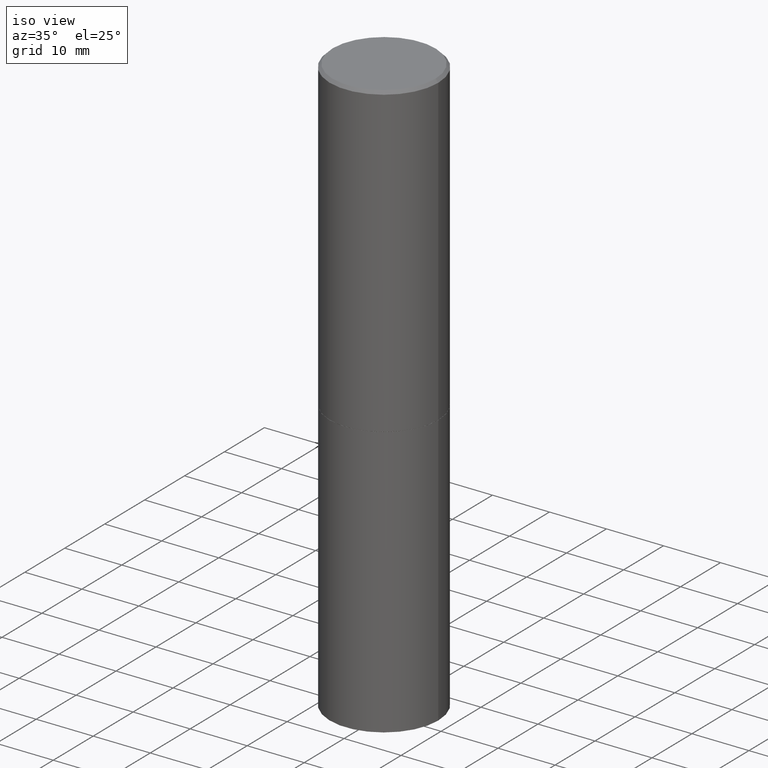
[diagram: clean part render]
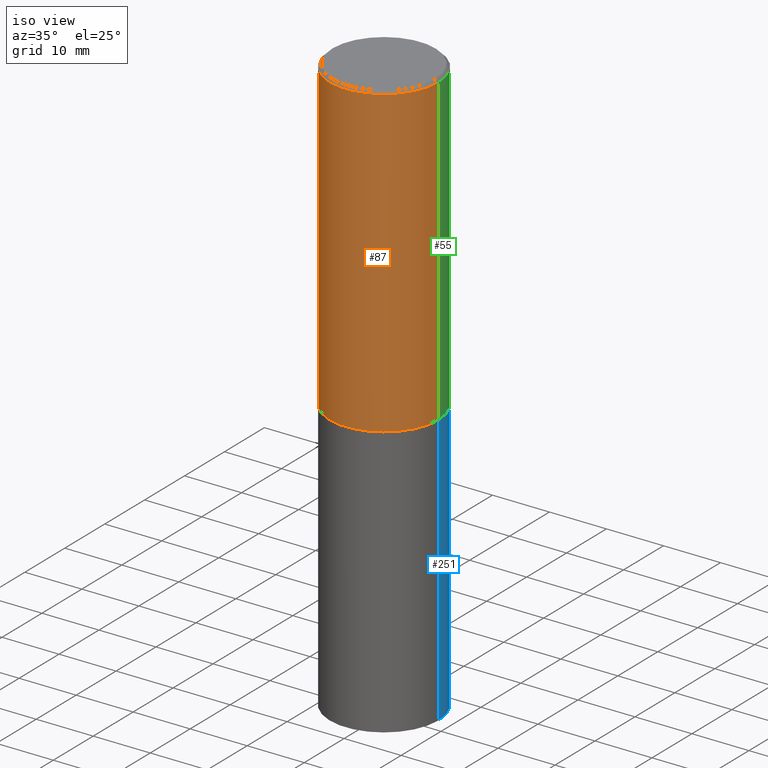
[diagram: same view with three faces highlighted in distinct colors, each labeled with its STEP entity id]
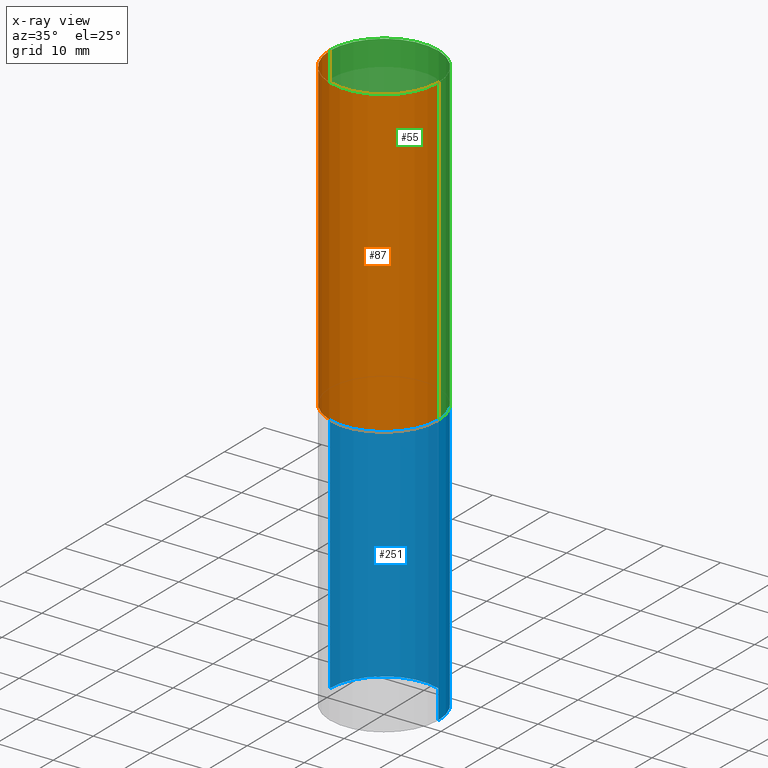
[diagram: x-ray of the same camera — body ghosted, the three highlighted faces saturated]
A machine part, iso view with three faces highlighted in distinct colors.
The next image is the same camera in x-ray (body ghosted, the three faces saturated) — at least one of them is partly hidden behind the body in this view.
Their STEP definitions:

[orange] entity #87 — the highlighted cylindrical surface (partial cylindrical patch) has radius 9.525 mm, axis along (-0, 0, 1).
#4 = EDGE_CURVE ( 'NONE', #83, #108, #168, .T. ) ;
#11 = VECTOR ( 'NONE', #260, 39.37007874015748143 ) ;
#12 = CIRCLE ( 'NONE', #364, 0.3749999999999998335 ) ;
#33 = DIRECTION ( 'NONE',  ( -2.445468806185136597E-29, 3.491481338843145583E-15, 1.000000000000000000 ) ) ;
#40 = LINE ( 'NONE', #148, #11 ) ;
#41 = AXIS2_PLACEMENT_3D ( 'NONE', #64, #144, #104 ) ;
#50 = VERTEX_POINT ( 'NONE', #213 ) ;
#51 = ORIENTED_EDGE ( 'NONE', *, *, #4, .T. ) ;
#56 = DIRECTION ( 'NONE',  ( -2.445468806185136877E-29, 3.491481338843145188E-15, 1.000000000000000000 ) ) ;
#64 = CARTESIAN_POINT ( 'NONE',  ( 0.000000000000000000, 0.000000000000000000, 0.000000000000000000 ) ) ;
#83 = VERTEX_POINT ( 'NONE', #201 ) ;
#87 = ADVANCED_FACE ( 'NONE', ( #319 ), #270, .T. ) ;
#94 = AXIS2_PLACEMENT_3D ( 'NONE', #333, #271, #132 ) ;
#104 = DIRECTION ( 'NONE',  ( 1.000000000000000000, -6.982962677686266711E-15, 4.876176775795935793E-29 ) ) ;
#108 = VERTEX_POINT ( 'NONE', #172 ) ;
#126 = ORIENTED_EDGE ( 'NONE', *, *, #236, .F. ) ;
#132 = DIRECTION ( 'NONE',  ( 1.000000000000000000, -6.982962677686264344E-15, 0.000000000000000000 ) ) ;
#133 = VERTEX_POINT ( 'NONE', #258 ) ;
#144 = DIRECTION ( 'NONE',  ( -2.445468806185136597E-29, 3.491481338843145583E-15, 1.000000000000000000 ) ) ;
#146 = EDGE_CURVE ( 'NONE', #108, #133, #40, .T. ) ;
#148 = CARTESIAN_POINT ( 'NONE',  ( 0.3749999999999999445, -2.618611004132349622E-15, 1.828566290923475642E-29 ) ) ;
#168 = CIRCLE ( 'NONE', #94, 0.3750000000000001665 ) ;
#172 = CARTESIAN_POINT ( 'NONE',  ( 0.3750000000000001665, -1.003451736783519063E-14, -2.123999999999999666 ) ) ;
#201 = CARTESIAN_POINT ( 'NONE',  ( -0.3750000000000001110, -1.078332736139473696E-15, -2.123999999999999666 ) ) ;
#203 = ORIENTED_EDGE ( 'NONE', *, *, #288, .F. ) ;
#213 = CARTESIAN_POINT ( 'NONE',  ( -0.3749999999999998335, 2.548781377355485141E-15, -0.02000000000000008021 ) ) ;
#236 = EDGE_CURVE ( 'NONE', #83, #50, #274, .T. ) ;
#237 = EDGE_LOOP ( 'NONE', ( #126, #51, #315, #203 ) ) ;
#249 = CARTESIAN_POINT ( 'NONE',  ( -0.3749999999999999445, 2.664535259100375303E-15, -1.844600658845589318E-29 ) ) ;
#255 = DIRECTION ( 'NONE',  ( 1.000000000000000000, -6.982962677686265922E-15, 0.000000000000000000 ) ) ;
#258 = CARTESIAN_POINT ( 'NONE',  ( 0.3749999999999998335, -2.642516375941186451E-15, -0.02000000000000008021 ) ) ;
#260 = DIRECTION ( 'NONE',  ( -2.445468806185136877E-29, 3.491481338843145188E-15, 1.000000000000000000 ) ) ;
#270 = CYLINDRICAL_SURFACE ( 'NONE', #41, 0.3749999999999999445 ) ;
#271 = DIRECTION ( 'NONE',  ( -2.445468806185136597E-29, 3.491481338843145583E-15, 1.000000000000000000 ) ) ;
#274 = LINE ( 'NONE', #249, #291 ) ;
#288 = EDGE_CURVE ( 'NONE', #50, #133, #12, .T. ) ;
#291 = VECTOR ( 'NONE', #56, 39.37007874015748143 ) ;
#309 = CARTESIAN_POINT ( 'NONE',  ( 4.890937612370293302E-31, -6.982962677686318726E-17, -0.02000000000000008021 ) ) ;
#315 = ORIENTED_EDGE ( 'NONE', *, *, #146, .T. ) ;
#319 = FACE_OUTER_BOUND ( 'NONE', #237, .T. ) ;
#333 = CARTESIAN_POINT ( 'NONE',  ( 5.194175744337229665E-29, -7.415906363702840616E-15, -2.123999999999999666 ) ) ;
#364 = AXIS2_PLACEMENT_3D ( 'NONE', #309, #33, #255 ) ;

[blue] entity #251 — the highlighted cylindrical surface (partial cylindrical patch) has radius 9.525 mm, axis along (-0, 0, 1).
#2 = DIRECTION ( 'NONE',  ( -2.445468806185136597E-29, 3.491481338843145583E-15, 1.000000000000000000 ) ) ;
#3 = CYLINDRICAL_SURFACE ( 'NONE', #272, 0.3750000000000000555 ) ;
#8 = CARTESIAN_POINT ( 'NONE',  ( -0.3750000000000000555, 2.664535259100376091E-15, -1.844600658845589598E-29 ) ) ;
#22 = CARTESIAN_POINT ( 'NONE',  ( 9.781875224740546387E-29, -1.396592535537258233E-14, -4.000000000000000000 ) ) ;
#30 = CIRCLE ( 'NONE', #301, 0.3750000000000000555 ) ;
#44 = VERTEX_POINT ( 'NONE', #299 ) ;
#46 = EDGE_CURVE ( 'NONE', #142, #68, #30, .T. ) ;
#59 = DIRECTION ( 'NONE',  ( -2.445468806185136877E-29, 3.491481338843145188E-15, 1.000000000000000000 ) ) ;
#68 = VERTEX_POINT ( 'NONE', #153 ) ;
#69 = AXIS2_PLACEMENT_3D ( 'NONE', #321, #73, #298 ) ;
#73 = DIRECTION ( 'NONE',  ( -2.445468806185136597E-29, 3.491481338843145583E-15, 1.000000000000000000 ) ) ;
#105 = DIRECTION ( 'NONE',  ( 1.000000000000000000, -6.982962677686266711E-15, 0.000000000000000000 ) ) ;
#137 = DIRECTION ( 'NONE',  ( -2.445468806185136877E-29, 3.491481338843145188E-15, 1.000000000000000000 ) ) ;
#142 = VERTEX_POINT ( 'NONE', #287 ) ;
#153 = CARTESIAN_POINT ( 'NONE',  ( -0.3750000000000000555, -8.028126341106757280E-15, -4.000000000000000000 ) ) ;
#154 = EDGE_LOOP ( 'NONE', ( #179, #324, #304, #259 ) ) ;
#163 = LINE ( 'NONE', #281, #253 ) ;
#179 = ORIENTED_EDGE ( 'NONE', *, *, #46, .T. ) ;
#185 = DIRECTION ( 'NONE',  ( -2.445468806185136597E-29, 3.491481338843145583E-15, 1.000000000000000000 ) ) ;
#192 = LINE ( 'NONE', #8, #335 ) ;
#202 = EDGE_CURVE ( 'NONE', #240, #44, #248, .T. ) ;
#222 = FACE_OUTER_BOUND ( 'NONE', #154, .T. ) ;
#240 = VERTEX_POINT ( 'NONE', #343 ) ;
#248 = CIRCLE ( 'NONE', #69, 0.3750000000000000555 ) ;
#251 = ADVANCED_FACE ( 'NONE', ( #222 ), #3, .T. ) ;
#253 = VECTOR ( 'NONE', #137, 39.37007874015748143 ) ;
#259 = ORIENTED_EDGE ( 'NONE', *, *, #285, .F. ) ;
#272 = AXIS2_PLACEMENT_3D ( 'NONE', #312, #2, #310 ) ;
#276 = EDGE_CURVE ( 'NONE', #68, #44, #192, .T. ) ;
#281 = CARTESIAN_POINT ( 'NONE',  ( 0.3750000000000000555, -2.618611004132350016E-15, 1.828566290923476203E-29 ) ) ;
#285 = EDGE_CURVE ( 'NONE', #142, #240, #163, .T. ) ;
#287 = CARTESIAN_POINT ( 'NONE',  ( 0.3750000000000000555, -1.658453635950493392E-14, -4.000000000000000000 ) ) ;
#298 = DIRECTION ( 'NONE',  ( 1.000000000000000000, -6.982962677686266711E-15, 0.000000000000000000 ) ) ;
#299 = CARTESIAN_POINT ( 'NONE',  ( -0.3750000000000000555, -8.028126341106757280E-15, -2.125000000000000000 ) ) ;
#301 = AXIS2_PLACEMENT_3D ( 'NONE', #22, #185, #105 ) ;
#304 = ORIENTED_EDGE ( 'NONE', *, *, #202, .F. ) ;
#310 = DIRECTION ( 'NONE',  ( 1.000000000000000000, -6.982962677686265922E-15, 4.876176775795935793E-29 ) ) ;
#312 = CARTESIAN_POINT ( 'NONE',  ( 0.000000000000000000, 0.000000000000000000, 0.000000000000000000 ) ) ;
#321 = CARTESIAN_POINT ( 'NONE',  ( 5.196621213143415268E-29, -7.419397845041683624E-15, -2.125000000000000000 ) ) ;
#324 = ORIENTED_EDGE ( 'NONE', *, *, #276, .T. ) ;
#335 = VECTOR ( 'NONE', #59, 39.37007874015748143 ) ;
#343 = CARTESIAN_POINT ( 'NONE',  ( 0.3750000000000000555, -1.003800884917403364E-14, -2.125000000000000000 ) ) ;

[green] entity #55 — the highlighted cylindrical surface (partial cylindrical patch) has radius 9.525 mm, axis along (-0, 0, 1).
#10 = CARTESIAN_POINT ( 'NONE',  ( 5.194175744337229665E-29, -7.415906363702840616E-15, -2.123999999999999666 ) ) ;
#11 = VECTOR ( 'NONE', #260, 39.37007874015748143 ) ;
#39 = DIRECTION ( 'NONE',  ( 1.000000000000000000, -6.982962677686264344E-15, 0.000000000000000000 ) ) ;
#40 = LINE ( 'NONE', #148, #11 ) ;
#50 = VERTEX_POINT ( 'NONE', #213 ) ;
#55 = ADVANCED_FACE ( 'NONE', ( #106 ), #76, .T. ) ;
#56 = DIRECTION ( 'NONE',  ( -2.445468806185136877E-29, 3.491481338843145188E-15, 1.000000000000000000 ) ) ;
#76 = CYLINDRICAL_SURFACE ( 'NONE', #346, 0.3749999999999999445 ) ;
#81 = EDGE_LOOP ( 'NONE', ( #363, #300, #188, #183 ) ) ;
#83 = VERTEX_POINT ( 'NONE', #201 ) ;
#84 = EDGE_CURVE ( 'NONE', #108, #83, #338, .T. ) ;
#86 = DIRECTION ( 'NONE',  ( 1.000000000000000000, -6.982962677686265922E-15, 0.000000000000000000 ) ) ;
#106 = FACE_OUTER_BOUND ( 'NONE', #81, .T. ) ;
#108 = VERTEX_POINT ( 'NONE', #172 ) ;
#120 = CIRCLE ( 'NONE', #217, 0.3749999999999998335 ) ;
#133 = VERTEX_POINT ( 'NONE', #258 ) ;
#146 = EDGE_CURVE ( 'NONE', #108, #133, #40, .T. ) ;
#148 = CARTESIAN_POINT ( 'NONE',  ( 0.3749999999999999445, -2.618611004132349622E-15, 1.828566290923475642E-29 ) ) ;
#150 = DIRECTION ( 'NONE',  ( -2.445468806185136597E-29, 3.491481338843145583E-15, 1.000000000000000000 ) ) ;
#165 = CARTESIAN_POINT ( 'NONE',  ( 4.890937612370293302E-31, -6.982962677686318726E-17, -0.02000000000000008021 ) ) ;
#172 = CARTESIAN_POINT ( 'NONE',  ( 0.3750000000000001665, -1.003451736783519063E-14, -2.123999999999999666 ) ) ;
#183 = ORIENTED_EDGE ( 'NONE', *, *, #146, .F. ) ;
#188 = ORIENTED_EDGE ( 'NONE', *, *, #350, .F. ) ;
#201 = CARTESIAN_POINT ( 'NONE',  ( -0.3750000000000001110, -1.078332736139473696E-15, -2.123999999999999666 ) ) ;
#213 = CARTESIAN_POINT ( 'NONE',  ( -0.3749999999999998335, 2.548781377355485141E-15, -0.02000000000000008021 ) ) ;
#215 = DIRECTION ( 'NONE',  ( 1.000000000000000000, -6.982962677686266711E-15, 4.876176775795935793E-29 ) ) ;
#217 = AXIS2_PLACEMENT_3D ( 'NONE', #165, #252, #86 ) ;
#236 = EDGE_CURVE ( 'NONE', #83, #50, #274, .T. ) ;
#245 = CARTESIAN_POINT ( 'NONE',  ( 0.000000000000000000, 0.000000000000000000, 0.000000000000000000 ) ) ;
#249 = CARTESIAN_POINT ( 'NONE',  ( -0.3749999999999999445, 2.664535259100375303E-15, -1.844600658845589318E-29 ) ) ;
#252 = DIRECTION ( 'NONE',  ( -2.445468806185136597E-29, 3.491481338843145583E-15, 1.000000000000000000 ) ) ;
#258 = CARTESIAN_POINT ( 'NONE',  ( 0.3749999999999998335, -2.642516375941186451E-15, -0.02000000000000008021 ) ) ;
#260 = DIRECTION ( 'NONE',  ( -2.445468806185136877E-29, 3.491481338843145188E-15, 1.000000000000000000 ) ) ;
#274 = LINE ( 'NONE', #249, #291 ) ;
#291 = VECTOR ( 'NONE', #56, 39.37007874015748143 ) ;
#300 = ORIENTED_EDGE ( 'NONE', *, *, #236, .T. ) ;
#338 = CIRCLE ( 'NONE', #354, 0.3750000000000001665 ) ;
#346 = AXIS2_PLACEMENT_3D ( 'NONE', #245, #360, #215 ) ;
#350 = EDGE_CURVE ( 'NONE', #133, #50, #120, .T. ) ;
#354 = AXIS2_PLACEMENT_3D ( 'NONE', #10, #150, #39 ) ;
#360 = DIRECTION ( 'NONE',  ( -2.445468806185136597E-29, 3.491481338843145583E-15, 1.000000000000000000 ) ) ;
#363 = ORIENTED_EDGE ( 'NONE', *, *, #84, .T. ) ;